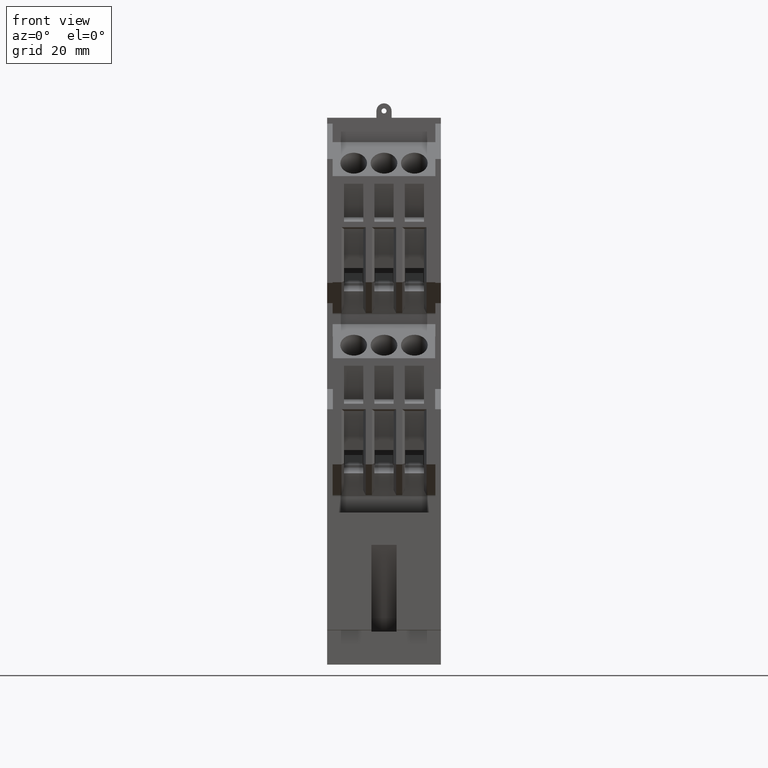
[diagram: clean part render]
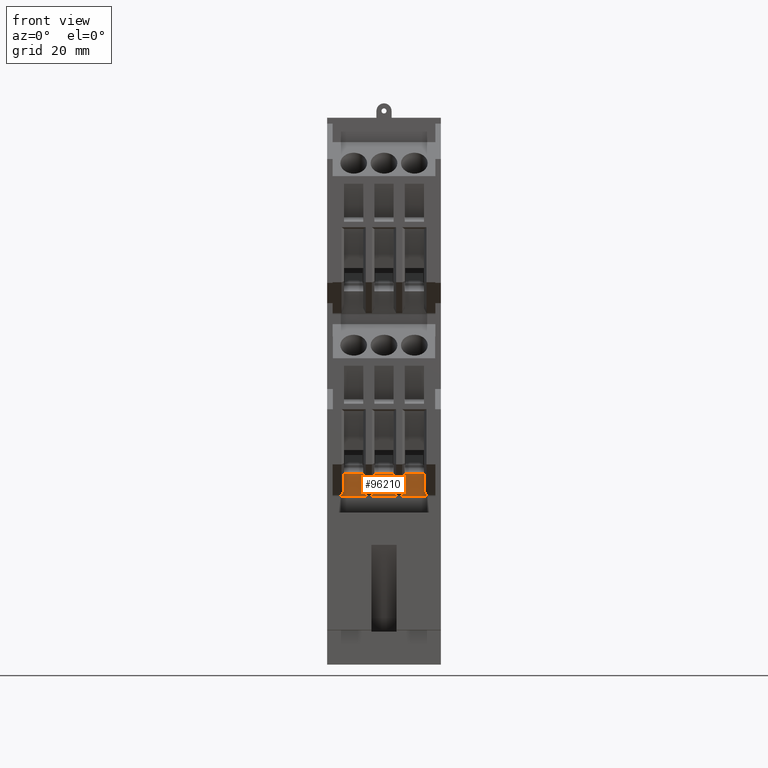
[diagram: same view with one face highlighted and labeled with its STEP entity id]
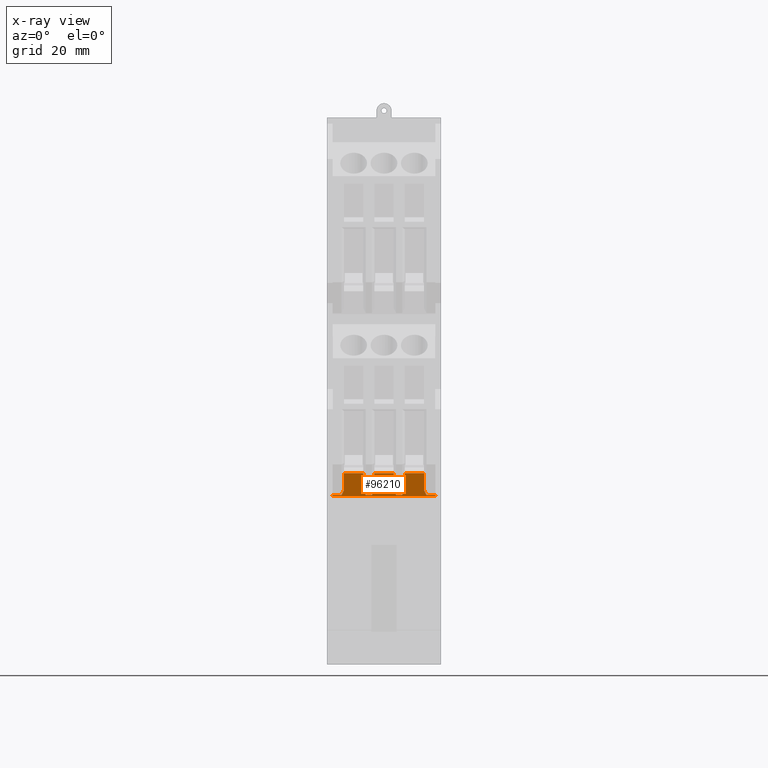
[diagram: x-ray of the same camera — body ghosted, the highlighted face saturated]
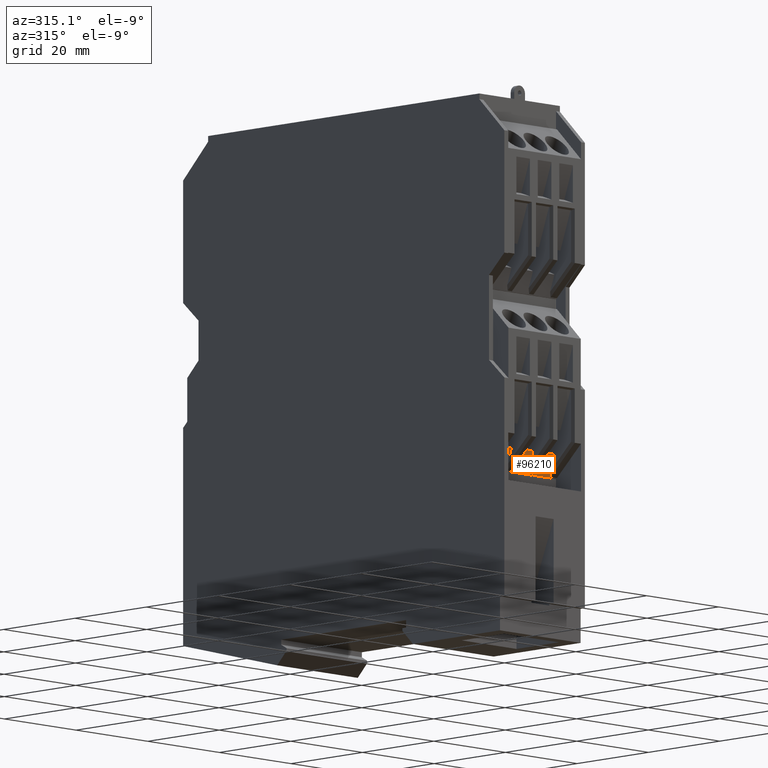
[diagram: same view with one face highlighted and labeled with its STEP entity id]
A machine part, front view. The second image highlights one B-rep face of the part: STEP entity #96210.
The next image is the same camera in x-ray: the body ghosted, the highlighted face saturated — about 0% of this face is hidden behind the body in this view.
A second angle (auxiliary view) of the same face is appended — the face is thin or edge-on in the first view.
In plain terms, the highlighted planar face has unit normal (0, 0.9397, 0.342).
Its self-contained STEP definition (entity closure, byte-faithful):
#92790=CARTESIAN_POINT('',(-10.0893993066638,-41.3360488429048,
88.8257143612142));
#92800=VERTEX_POINT('',#92790);
#92830=CARTESIAN_POINT('',(0.,-41.3360488429048,88.8257143612142));
#92840=DIRECTION('',(-1.,0.,0.));
#92850=VECTOR('',#92840,1.);
#92860=LINE('',#92830,#92850);
#92870=CARTESIAN_POINT('',(10.2106006933362,-41.3360488429048,
88.8257143612142));
#92880=VERTEX_POINT('',#92870);
#92890=EDGE_CURVE('',#92880,#92800,#92860,.T.);
#93200=CARTESIAN_POINT('',(-10.0893993066638,-9.00613277798753,0.));
#93210=DIRECTION('',(0.,-0.3420201433257,0.939692620785897));
#93220=VECTOR('',#93210,1.);
#93230=LINE('',#93200,#93220);
#93240=CARTESIAN_POINT('',(-10.0893993066638,-41.4020446918884,
89.0070364660745));
#93250=VERTEX_POINT('',#93240);
#93260=EDGE_CURVE('',#92800,#93250,#93230,.T.);
#94070=CARTESIAN_POINT('',(10.2106006933362,-9.00613277798753,0.));
#94080=DIRECTION('',(0.,-0.3420201433257,0.939692620785897));
#94090=VECTOR('',#94080,1.);
#94100=LINE('',#94070,#94090);
#94110=CARTESIAN_POINT('',(10.2106006933362,-41.4020446918884,
89.0070364660745));
#94120=VERTEX_POINT('',#94110);
#94130=EDGE_CURVE('',#92880,#94120,#94100,.T.);
#94610=CARTESIAN_POINT('',(-10.0393993066638,-41.4020446918884,
89.0070364660745));
#94620=DIRECTION('',(4.88855290486934E-19,0.939692620785897,
0.3420201433257));
#94630=DIRECTION('',(-3.8700371036542E-18,-0.3420201433257,
0.939692620785897));
#94640=AXIS2_PLACEMENT_3D('',#94610,#94620,#94630);
#94650=PLANE('',#94640);
#94660=ORIENTED_EDGE('',*,*,#93260,.F.);
#94670=CARTESIAN_POINT('',(0.,-41.4020446918884,89.0070364660745));
#94680=DIRECTION('',(-1.,1.00759816137676E-18,-2.76835319626636E-18));
#94690=VECTOR('',#94680,1.);
#94700=LINE('',#94670,#94690);
#94710=CARTESIAN_POINT('',(-8.33939930666382,-41.4020446918884,
89.0070364660745));
#94720=VERTEX_POINT('',#94710);
#94730=EDGE_CURVE('',#94720,#93250,#94700,.T.);
#94740=ORIENTED_EDGE('',*,*,#94730,.T.);
#94750=CARTESIAN_POINT('',(-52.6340255133209,-9.00613277798753,0.));
#94760=DIRECTION('',(0.423610037046828,-0.309817118265942,
0.851215536596092));
#94770=VECTOR('',#94760,1.);
#94780=LINE('',#94750,#94770);
#94790=CARTESIAN_POINT('',(-7.83939930666443,-41.7677313980226,
90.0117524337728));
#94800=VERTEX_POINT('',#94790);
#94810=EDGE_CURVE('',#94720,#94800,#94780,.T.);
#94820=ORIENTED_EDGE('',*,*,#94810,.F.);
#94830=CARTESIAN_POINT('',(-7.83939930666382,-9.00613277798753,0.));
#94840=DIRECTION('',(0.,-0.3420201433257,0.939692620785897));
#94850=VECTOR('',#94840,1.);
#94860=LINE('',#94830,#94850);
#94870=CARTESIAN_POINT('',(-7.83939930666382,-42.9782910052591,
93.3377376195587));
#94880=VERTEX_POINT('',#94870);
#94890=EDGE_CURVE('',#94800,#94880,#94860,.T.);
#94900=ORIENTED_EDGE('',*,*,#94890,.F.);
#94910=CARTESIAN_POINT('',(0.,-42.9782910052591,93.3377376195587));
#94920=DIRECTION('',(1.,-1.34035048051937E-18,3.68258267938175E-18));
#94930=VECTOR('',#94920,1.);
#94940=LINE('',#94910,#94930);
#94950=CARTESIAN_POINT('',(-4.03939930666381,-42.9782910052591,
93.3377376195587));
#94960=VERTEX_POINT('',#94950);
#94970=EDGE_CURVE('',#94880,#94960,#94940,.T.);
#94980=ORIENTED_EDGE('',*,*,#94970,.F.);
#94990=CARTESIAN_POINT('',(-4.03939930666381,-9.00613277798753,0.));
#95000=DIRECTION('',(0.,-0.3420201433257,0.939692620785897));
#95010=VECTOR('',#95000,1.);
#95020=LINE('',#94990,#95010);
#95030=CARTESIAN_POINT('',(-4.03939930666355,-41.7677313980228,
90.0117524337735));
#95040=VERTEX_POINT('',#95030);
#95050=EDGE_CURVE('',#95040,#94960,#95020,.T.);
#95060=ORIENTED_EDGE('',*,*,#95050,.T.);
#95070=CARTESIAN_POINT('',(40.7552268999932,-9.00613277798753,0.));
#95080=DIRECTION('',(-0.423610037046827,-0.309817118265942,
0.851215536596092));
#95090=VECTOR('',#95080,1.);
#95100=LINE('',#95070,#95090);
#95110=CARTESIAN_POINT('',(-3.53939930666382,-41.402044691889,
89.0070364660762));
#95120=VERTEX_POINT('',#95110);
#95130=EDGE_CURVE('',#95120,#95040,#95100,.T.);
#95140=ORIENTED_EDGE('',*,*,#95130,.T.);
#95150=CARTESIAN_POINT('',(0.,-41.4020446918884,89.0070364660745));
#95160=DIRECTION('',(-1.,1.00759816137676E-18,-2.76835319626636E-18));
#95170=VECTOR('',#95160,1.);
#95180=LINE('',#95150,#95170);
#95190=CARTESIAN_POINT('',(-2.33939930666382,-41.4020446918884,
89.0070364660745));
#95200=VERTEX_POINT('',#95190);
#95210=EDGE_CURVE('',#95200,#95120,#95180,.T.);
#95220=ORIENTED_EDGE('',*,*,#95210,.T.);
#95230=CARTESIAN_POINT('',(-46.6340255133208,-9.00613277798753,0.));
#95240=DIRECTION('',(0.423610037046827,-0.309817118265942,
0.851215536596092));
#95250=VECTOR('',#95240,1.);
#95260=LINE('',#95230,#95250);
#95270=CARTESIAN_POINT('',(-1.83939930666426,-41.7677313980227,
90.0117524337731));
#95280=VERTEX_POINT('',#95270);
#95290=EDGE_CURVE('',#95200,#95280,#95260,.T.);
#95300=ORIENTED_EDGE('',*,*,#95290,.F.);
#95310=CARTESIAN_POINT('',(-1.83939930666382,-9.00613277798753,0.));
#95320=DIRECTION('',(0.,-0.3420201433257,0.939692620785897));
#95330=VECTOR('',#95320,1.);
#95340=LINE('',#95310,#95330);
#95350=CARTESIAN_POINT('',(-1.83939930666382,-42.9782910052591,
93.3377376195587));
#95360=VERTEX_POINT('',#95350);
#95370=EDGE_CURVE('',#95280,#95360,#95340,.T.);
#95380=ORIENTED_EDGE('',*,*,#95370,.F.);
#95390=CARTESIAN_POINT('',(0.,-42.9782910052591,93.3377376195587));
#95400=DIRECTION('',(1.,-1.34035048051937E-18,3.68258267938175E-18));
#95410=VECTOR('',#95400,1.);
#95420=LINE('',#95390,#95410);
#95430=CARTESIAN_POINT('',(1.96060069333618,-42.9782910052591,
93.3377376195587));
#95440=VERTEX_POINT('',#95430);
#95450=EDGE_CURVE('',#95360,#95440,#95420,.T.);
#95460=ORIENTED_EDGE('',*,*,#95450,.F.);
#95470=CARTESIAN_POINT('',(1.96060069333618,-9.00613277798753,0.));
#95480=DIRECTION('',(0.,-0.3420201433257,0.939692620785897));
#95490=VECTOR('',#95480,1.);
#95500=LINE('',#95470,#95490);
#95510=CARTESIAN_POINT('',(1.96060069333639,-41.7677313980229,
90.0117524337736));
#95520=VERTEX_POINT('',#95510);
#95530=EDGE_CURVE('',#95520,#95440,#95500,.T.);
#95540=ORIENTED_EDGE('',*,*,#95530,.T.);
#95550=CARTESIAN_POINT('',(46.7552268999932,-9.00613277798753,0.));
#95560=DIRECTION('',(-0.423610037046827,-0.309817118265942,
0.851215536596092));
#95570=VECTOR('',#95560,1.);
#95580=LINE('',#95550,#95570);
#95590=CARTESIAN_POINT('',(2.460600693337,-41.4020446918884,
89.0070364660745));
#95600=VERTEX_POINT('',#95590);
#95610=EDGE_CURVE('',#95600,#95520,#95580,.T.);
#95620=ORIENTED_EDGE('',*,*,#95610,.T.);
#95630=CARTESIAN_POINT('',(0.,-41.4020446918884,89.0070364660745));
#95640=DIRECTION('',(-1.,1.00759816137676E-18,-2.76835319626636E-18));
#95650=VECTOR('',#95640,1.);
#95660=LINE('',#95630,#95650);
#95670=CARTESIAN_POINT('',(3.66060069333618,-41.4020446918884,
89.0070364660745));
#95680=VERTEX_POINT('',#95670);
#95690=EDGE_CURVE('',#95680,#95600,#95660,.T.);
#95700=ORIENTED_EDGE('',*,*,#95690,.T.);
#95710=CARTESIAN_POINT('',(-40.6340255133208,-9.00613277798753,0.));
#95720=DIRECTION('',(0.423610037046827,-0.309817118265942,
0.851215536596092));
#95730=VECTOR('',#95720,1.);
#95740=LINE('',#95710,#95730);
#95750=CARTESIAN_POINT('',(4.16060069333618,-41.7677313980226,
90.0117524337727));
#95760=VERTEX_POINT('',#95750);
#95770=EDGE_CURVE('',#95680,#95760,#95740,.T.);
#95780=ORIENTED_EDGE('',*,*,#95770,.F.);
#95790=CARTESIAN_POINT('',(4.16060069333618,-9.00613277798753,0.));
#95800=DIRECTION('',(0.,-0.3420201433257,0.939692620785897));
#95810=VECTOR('',#95800,1.);
#95820=LINE('',#95790,#95810);
#95830=CARTESIAN_POINT('',(4.16060069333618,-42.9782910052591,
93.3377376195587));
#95840=VERTEX_POINT('',#95830);
#95850=EDGE_CURVE('',#95760,#95840,#95820,.T.);
#95860=ORIENTED_EDGE('',*,*,#95850,.F.);
#95870=CARTESIAN_POINT('',(0.,-42.9782910052591,93.3377376195587));
#95880=DIRECTION('',(1.,-1.34035048051937E-18,3.68258267938175E-18));
#95890=VECTOR('',#95880,1.);
#95900=LINE('',#95870,#95890);
#95910=CARTESIAN_POINT('',(7.96060069333618,-42.9782910052591,
93.3377376195587));
#95920=VERTEX_POINT('',#95910);
#95930=EDGE_CURVE('',#95840,#95920,#95900,.T.);
#95940=ORIENTED_EDGE('',*,*,#95930,.F.);
#95950=CARTESIAN_POINT('',(7.96060069333619,-9.00613277798753,0.));
#95960=DIRECTION('',(0.,0.3420201433257,-0.939692620785897));
#95970=VECTOR('',#95960,1.);
#95980=LINE('',#95950,#95970);
#95990=CARTESIAN_POINT('',(7.96060069333702,-41.7677313980224,
90.0117524337723));
#96000=VERTEX_POINT('',#95990);
#96010=EDGE_CURVE('',#95920,#96000,#95980,.T.);
#96020=ORIENTED_EDGE('',*,*,#96010,.F.);
#96030=CARTESIAN_POINT('',(52.7552268999932,-9.00613277798753,0.));
#96040=DIRECTION('',(0.423610037046827,0.309817118265942,
-0.851215536596092));
#96050=VECTOR('',#96040,1.);
#96060=LINE('',#96030,#96050);
#96070=CARTESIAN_POINT('',(8.46060069333767,-41.4020446918879,
89.0070364660731));
#96080=VERTEX_POINT('',#96070);
#96090=EDGE_CURVE('',#96000,#96080,#96060,.T.);
#96100=ORIENTED_EDGE('',*,*,#96090,.F.);
#96110=CARTESIAN_POINT('',(0.,-41.4020446918884,89.0070364660745));
#96120=DIRECTION('',(-1.,1.00759816137676E-18,-2.76835319626636E-18));
#96130=VECTOR('',#96120,1.);
#96140=LINE('',#96110,#96130);
#96150=EDGE_CURVE('',#94120,#96080,#96140,.T.);
#96160=ORIENTED_EDGE('',*,*,#96150,.T.);
#96170=ORIENTED_EDGE('',*,*,#94130,.T.);
#96180=ORIENTED_EDGE('',*,*,#92890,.F.);
#96190=EDGE_LOOP('',(#96180,#96170,#96160,#96100,#96020,#95940,#95860,
#95780,#95700,#95620,#95540,#95460,#95380,#95300,#95220,#95140,#95060,
#94980,#94900,#94820,#94740,#94660));
#96200=FACE_OUTER_BOUND('',#96190,.T.);
#96210=ADVANCED_FACE('',(#96200),#94650,.F.);